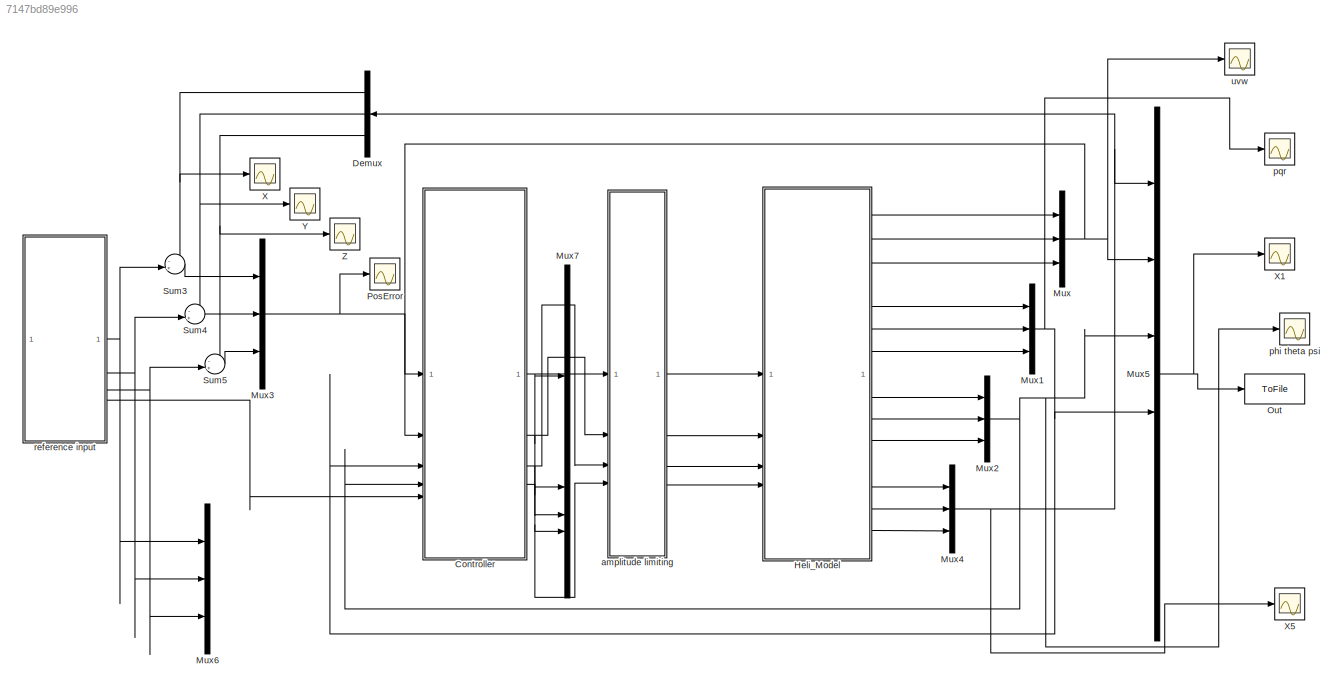
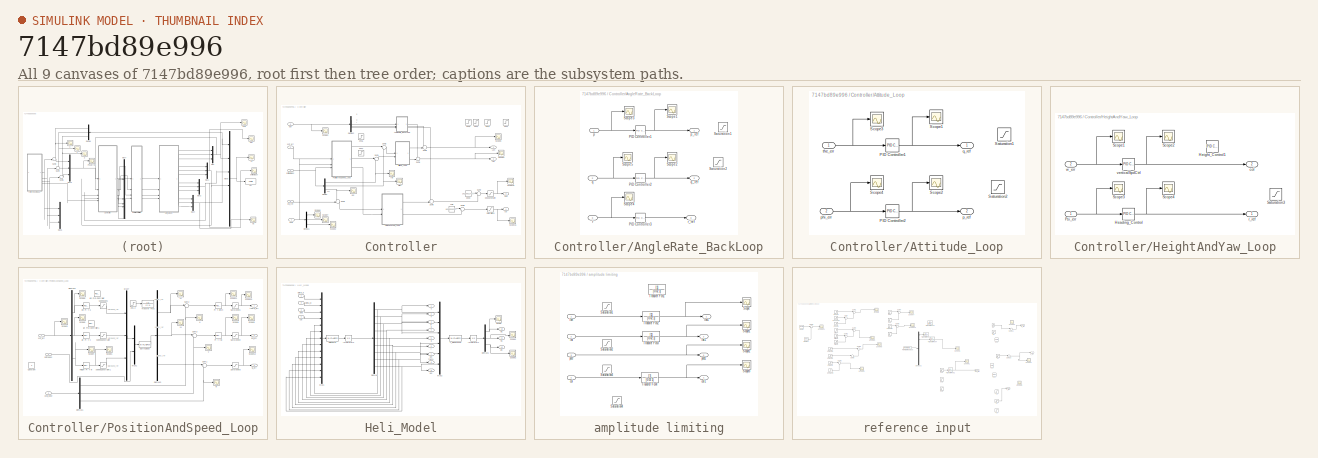
[diagram: thumbnail index - all 9 canvases of the model, root first then tree order]
MODEL mdl_7147bd89e996
KIND model
CONFIG AbsTol = auto
CONFIG EnableMultiTasking = on
CONFIG FixedStep = 0.01
CONFIG MaxStep = auto
CONFIG MinStep = auto
CONFIG RelTol = 1e-3
CONFIG SampleTimeConstraint = Unconstrained
CONFIG SolverName = ode3
CONFIG StartTime = 0.0
CONFIG StopTime = 80
BLOCK [SubSystem] Controller
BLOCK [Step] Controller/20s,1
  SampleTime = 0
  Time = 0
BLOCK [Step] Controller/20s,2
  After = 0
  SampleTime = 0
  Time = 0
BLOCK [Step] Controller/20s,3
  After = 25.296753501
  SampleTime = 0
  Time = 0
BLOCK [Step] Controller/20s,4
  After = 0.2
  SampleTime = 0
  Time = 0
BLOCK [Step] Controller/20s,5
  After = -0.1
  SampleTime = 0
BLOCK [Step] Controller/20s,6
  After = 0
  SampleTime = 0
  Time = 0
BLOCK [SubSystem] Controller/AngleRate_BackLoop
BLOCK [Reference] Controller/AngleRate_BackLoop/PID Controller1  REF=simulink_need_slupdate/PID Controller
  SourceBlock = simulink_need_slupdate/PID Controller
  SourceType = PID Controller
BLOCK [Reference] Controller/AngleRate_BackLoop/PID Controller2  REF=simulink_need_slupdate/PID Controller
  SourceBlock = simulink_need_slupdate/PID Controller
  SourceType = PID Controller
BLOCK [Reference] Controller/AngleRate_BackLoop/PID Controller3  REF=simulink_need_slupdate/PID Controller
  SourceBlock = simulink_need_slupdate/PID Controller
  SourceType = PID Controller
BLOCK [Saturate] Controller/AngleRate_BackLoop/Saturation1
  LowerLimit = -10
  UpperLimit = 10
BLOCK [Saturate] Controller/AngleRate_BackLoop/Saturation2
  LowerLimit = -10
  UpperLimit = 10
BLOCK [Scope] Controller/AngleRate_BackLoop/Scope1
  Floating = off
  NumInputPorts = 1
  ScopeSpecificationString = Simulink.scopes.TimeScopeBlockCfg('CurrentConfiguration', extmgr.ConfigurationSet(extmgr.Configuration('Core','General UI',true),extmgr.Configuration('Core','Source UI',true),extmgr.Configuration('Sources','WiredSimulink',true,'DataLoggingVariableName','ScopeData7','DataLoggingSaveFormat','StructureWithTime','DataLoggingDecimation','1','DataLoggingDecimateData',true),extmgr.Configuration('Visuals'...<+1654ch>
BLOCK [Scope] Controller/AngleRate_BackLoop/Scope2
  Floating = off
  NumInputPorts = 1
  ScopeSpecificationString = C++SS(StrPVP('Location','[5, 55, 1371, 733]'),StrPVP('Open','off'),StrPVP('ZoomMode','xonly'),MxPVP('AxesTitles',54,'struct(''axes1'',''%<SignalLabel>'')'),StrPVP('YMin','2.77556e-017'),StrPVP('YMax','0.9'),StrPVP('SaveName','ScopeData24'),StrPVP('DataFormat','StructureWithTime'),StrPVP('LimitDataPoints','off'),StrPVP('BlockParamSampleTime','0'),StrPVP('Decimation','1'),StrPVP('BlockParamSampleInp...<+11ch>
BLOCK [Scope] Controller/AngleRate_BackLoop/Scope3
  Floating = off
  NumInputPorts = 1
  ScopeSpecificationString = C++SS(StrPVP('Location','[-6, 55, 1360, 733]'),StrPVP('Open','off'),StrPVP('ZoomMode','xonly'),MxPVP('AxesTitles',54,'struct(''axes1'',''%<SignalLabel>'')'),StrPVP('YMin','2.77556e-017'),StrPVP('YMax','0.9'),StrPVP('SaveName','ScopeData42'),StrPVP('DataFormat','StructureWithTime'),StrPVP('LimitDataPoints','off'),StrPVP('BlockParamSampleTime','0'),StrPVP('Decimation','1'),StrPVP('BlockParamSampleIn...<+12ch>
BLOCK [Scope] Controller/AngleRate_BackLoop/Scope4
  Floating = off
  NumInputPorts = 1
  ScopeSpecificationString = C++SS(StrPVP('Location','[-6, 55, 1360, 733]'),StrPVP('Open','off'),StrPVP('ZoomMode','xonly'),MxPVP('AxesTitles',54,'struct(''axes1'',''%<SignalLabel>'')'),StrPVP('YMin','2.77556e-017'),StrPVP('YMax','0.9'),StrPVP('SaveName','ScopeData8'),StrPVP('DataFormat','StructureWithTime'),StrPVP('LimitDataPoints','off'),StrPVP('BlockParamSampleTime','0'),StrPVP('Decimation','1'),StrPVP('BlockParamSampleInp...<+11ch>
BLOCK [Scope] Controller/AngleRate_BackLoop/Scope5
  Floating = off
  NumInputPorts = 1
  ScopeSpecificationString = C++SS(StrPVP('Location','[-6, 55, 1360, 733]'),StrPVP('Open','off'),MxPVP('AxesTitles',54,'struct(''axes1'',''%<SignalLabel>'')'),StrPVP('YMin','2.77556e-017'),StrPVP('YMax','0.9'),StrPVP('SaveName','ScopeData11'),StrPVP('DataFormat','StructureWithTime'),StrPVP('LimitDataPoints','off'),StrPVP('BlockParamSampleTime','0'),StrPVP('Decimation','1'),StrPVP('BlockParamSampleInput','off'))
BLOCK [Inport] Controller/AngleRate_BackLoop/p
BLOCK [Outport] Controller/AngleRate_BackLoop/p_ref
BLOCK [Inport] Controller/AngleRate_BackLoop/q
  Port = 2
BLOCK [Outport] Controller/AngleRate_BackLoop/q_ref
  Port = 2
BLOCK [Inport] Controller/AngleRate_BackLoop/r
  Port = 3
BLOCK [Outport] Controller/AngleRate_BackLoop/r_ref
  Port = 3
BLOCK [SubSystem] Controller/Attitude_Loop
BLOCK [Reference] Controller/Attitude_Loop/PID Controller1  REF=simulink_need_slupdate/PID Controller
  SourceBlock = simulink_need_slupdate/PID Controller
  SourceType = PID Controller
BLOCK [Reference] Controller/Attitude_Loop/PID Controller2  REF=simulink_need_slupdate/PID Controller
  SourceBlock = simulink_need_slupdate/PID Controller
  SourceType = PID Controller
BLOCK [Saturate] Controller/Attitude_Loop/Saturation1
  LowerLimit = -3
  UpperLimit = 3
BLOCK [Saturate] Controller/Attitude_Loop/Saturation2
  LowerLimit = -3
  UpperLimit = 3
BLOCK [Scope] Controller/Attitude_Loop/Scope1
  Floating = off
  NumInputPorts = 1
  ScopeSpecificationString = Simulink.scopes.TimeScopeBlockCfg('CurrentConfiguration', extmgr.ConfigurationSet(extmgr.Configuration('Core','General UI',true),extmgr.Configuration('Core','Source UI',true),extmgr.Configuration('Sources','WiredSimulink',true,'DataLoggingVariableName','ScopeData7','DataLoggingSaveFormat','StructureWithTime','DataLoggingDecimation','1','DataLoggingDecimateData',true),extmgr.Configuration('Visuals'...<+1685ch>
BLOCK [Scope] Controller/Attitude_Loop/Scope2
  Floating = off
  NumInputPorts = 1
  ScopeSpecificationString = C++SS(StrPVP('Location','[5, 55, 1371, 733]'),StrPVP('Open','off'),StrPVP('ZoomMode','xonly'),MxPVP('AxesTitles',54,'struct(''axes1'',''%<SignalLabel>'')'),StrPVP('YMin','2.77556e-017'),StrPVP('YMax','0.9'),StrPVP('SaveName','ScopeData24'),StrPVP('DataFormat','StructureWithTime'),StrPVP('LimitDataPoints','off'),StrPVP('BlockParamSampleTime','0'),StrPVP('Decimation','1'),StrPVP('BlockParamSampleInp...<+11ch>
BLOCK [Scope] Controller/Attitude_Loop/Scope3
  Floating = off
  NumInputPorts = 1
  ScopeSpecificationString = Simulink.scopes.TimeScopeBlockCfg('CurrentConfiguration', extmgr.ConfigurationSet(extmgr.Configuration('Core','General UI',true),extmgr.Configuration('Core','Source UI',true),extmgr.Configuration('Sources','WiredSimulink',true,'DataLoggingVariableName','ScopeData42','DataLoggingSaveFormat','StructureWithTime','DataLoggingDecimation','1','DataLoggingDecimateData',true),extmgr.Configuration('Visuals...<+1671ch>
BLOCK [Scope] Controller/Attitude_Loop/Scope4
  Floating = off
  NumInputPorts = 1
  ScopeSpecificationString = C++SS(StrPVP('Location','[5, 55, 1371, 733]'),StrPVP('Open','off'),StrPVP('ZoomMode','xonly'),MxPVP('AxesTitles',54,'struct(''axes1'',''%<SignalLabel>'')'),StrPVP('YMin','2.77556e-017'),StrPVP('YMax','0.9'),StrPVP('SaveName','ScopeData59'),StrPVP('DataFormat','StructureWithTime'),StrPVP('LimitDataPoints','off'),StrPVP('BlockParamSampleTime','0'),StrPVP('Decimation','1'),StrPVP('BlockParamSampleInp...<+11ch>
BLOCK [Outport] Controller/Attitude_Loop/p_ref
  Port = 2
BLOCK [Inport] Controller/Attitude_Loop/phi_err
  Port = 2
BLOCK [Outport] Controller/Attitude_Loop/q_ref
BLOCK [Inport] Controller/Attitude_Loop/the_err
BLOCK [Demux] Controller/Demux
  Outputs = 3
BLOCK [Demux] Controller/Demux1
  Outputs = 3
BLOCK [Demux] Controller/Demux2
  Outputs = 3
BLOCK [SubSystem] Controller/HeightAndYaw_Loop
BLOCK [Reference] Controller/HeightAndYaw_Loop/Heading_Control  REF=simulink_need_slupdate/PID Controller
  SourceBlock = simulink_need_slupdate/PID Controller
  SourceType = PID Controller
BLOCK [Reference] Controller/HeightAndYaw_Loop/Height_Control1  REF=simulink_need_slupdate/PID Controller
  SourceBlock = simulink_need_slupdate/PID Controller
  SourceType = PID Controller
BLOCK [Inport] Controller/HeightAndYaw_Loop/Psi_err
BLOCK [Saturate] Controller/HeightAndYaw_Loop/Saturation3
  LowerLimit = 18.7232
  UpperLimit = 36
BLOCK [Scope] Controller/HeightAndYaw_Loop/Scope1
  Floating = off
  NumInputPorts = 1
  ScopeSpecificationString = C++SS(StrPVP('Location','[5, 55, 1371, 733]'),StrPVP('Open','off'),MxPVP('AxesTitles',54,'struct(''axes1'',''%<SignalLabel>'')'),StrPVP('TimeRange','12.03065134099617'),StrPVP('YMin','-0.9684385382059784'),StrPVP('YMax','0.5963455149501673'),StrPVP('SaveName','ScopeData26'),StrPVP('DataFormat','StructureWithTime'),StrPVP('LimitDataPoints','off'),StrPVP('BlockParamSampleTime','0'),StrPVP('Decimatio...<+46ch>
BLOCK [Scope] Controller/HeightAndYaw_Loop/Scope2
  Floating = off
  NumInputPorts = 1
  ScopeSpecificationString = C++SS(StrPVP('Location','[5, 55, 1371, 733]'),StrPVP('Open','off'),MxPVP('AxesTitles',54,'struct(''axes1'',''%<SignalLabel>'')'),StrPVP('YMin','2.77556e-017'),StrPVP('YMax','0.9'),StrPVP('SaveName','ScopeData36'),StrPVP('DataFormat','StructureWithTime'),StrPVP('LimitDataPoints','off'),StrPVP('BlockParamSampleTime','0'),StrPVP('Decimation','1'),StrPVP('BlockParamSampleInput','off'))
BLOCK [Scope] Controller/HeightAndYaw_Loop/Scope3
  Floating = off
  NumInputPorts = 1
  ScopeSpecificationString = Simulink.scopes.TimeScopeBlockCfg('CurrentConfiguration', extmgr.ConfigurationSet(extmgr.Configuration('Core','General UI',true),extmgr.Configuration('Core','Source UI',true),extmgr.Configuration('Sources','WiredSimulink',true,'DataLoggingVariableName','ScopeData32','DataLoggingSaveFormat','StructureWithTime','DataLoggingDecimation','1','DataLoggingDecimateData',true),extmgr.Configuration('Visuals...<+1671ch>
BLOCK [Scope] Controller/HeightAndYaw_Loop/Scope4
  Floating = off
  NumInputPorts = 1
  ScopeSpecificationString = Simulink.scopes.TimeScopeBlockCfg('CurrentConfiguration', extmgr.ConfigurationSet(extmgr.Configuration('Core','General UI',true),extmgr.Configuration('Core','Source UI',true),extmgr.Configuration('Sources','WiredSimulink',true,'DataLoggingVariableName','ScopeData37','DataLoggingSaveFormat','StructureWithTime','DataLoggingDecimation','1','DataLoggingDecimateData',true),extmgr.Configuration('Visuals...<+1674ch>
BLOCK [Outport] Controller/HeightAndYaw_Loop/col
  Port = 2
BLOCK [Outport] Controller/HeightAndYaw_Loop/r_ref
BLOCK [Reference] Controller/HeightAndYaw_Loop/verticalSpdCtrl  REF=simulink_need_slupdate/PID Controller
  SourceBlock = simulink_need_slupdate/PID Controller
  SourceType = PID Controller
BLOCK [Inport] Controller/HeightAndYaw_Loop/w_err
  Port = 2
BLOCK [Outport] Controller/Lat
  Port = 2
BLOCK [Outport] Controller/Lon
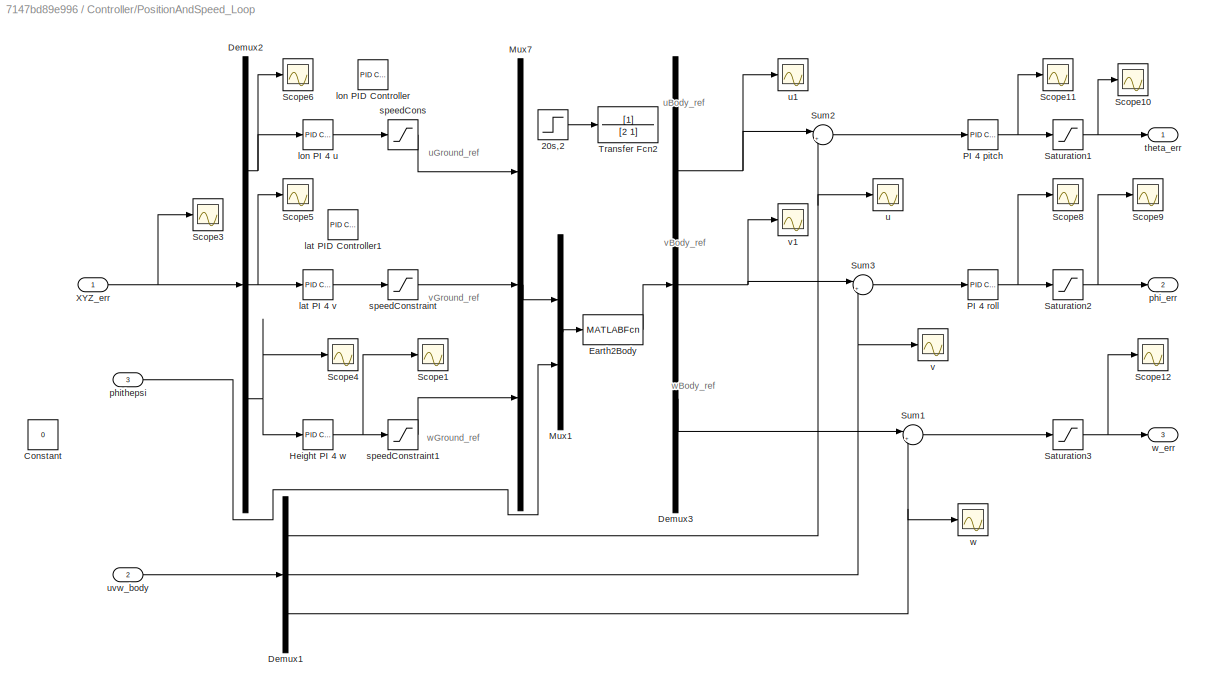
BLOCK [SubSystem] Controller/PositionAndSpeed_Loop
BLOCK [Step] Controller/PositionAndSpeed_Loop/20s,2
  After = 5
  SampleTime = 0
  Time = 10
BLOCK [Constant] Controller/PositionAndSpeed_Loop/Constant
  Value = 0
BLOCK [Demux] Controller/PositionAndSpeed_Loop/Demux1
  Outputs = 3
BLOCK [Demux] Controller/PositionAndSpeed_Loop/Demux2
  Outputs = 3
BLOCK [Demux] Controller/PositionAndSpeed_Loop/Demux3
  Outputs = 3
BLOCK [MATLABFcn] Controller/PositionAndSpeed_Loop/Earth2Body
  MATLABFcn = Earth2Body
  OutputDimensions = 3
BLOCK [Reference] Controller/PositionAndSpeed_Loop/Height PI 4 w  REF=simulink_need_slupdate/PID Controller
  SourceBlock = simulink_need_slupdate/PID Controller
  SourceType = PID Controller
BLOCK [Mux] Controller/PositionAndSpeed_Loop/Mux1
  DisplayOption = bar
  Inputs = 2
BLOCK [Mux] Controller/PositionAndSpeed_Loop/Mux7
  DisplayOption = bar
  Inputs = 3
BLOCK [Reference] Controller/PositionAndSpeed_Loop/PI 4 pitch  REF=simulink_need_slupdate/PID Controller
  SourceBlock = simulink_need_slupdate/PID Controller
  SourceType = PID Controller
BLOCK [Reference] Controller/PositionAndSpeed_Loop/PI 4 roll  REF=simulink_need_slupdate/PID Controller
  SourceBlock = simulink_need_slupdate/PID Controller
  SourceType = PID Controller
BLOCK [Saturate] Controller/PositionAndSpeed_Loop/Saturation1
  LowerLimit = -0.5236
  UpperLimit = 0.1745
BLOCK [Saturate] Controller/PositionAndSpeed_Loop/Saturation2
  LowerLimit = -0.6109
  UpperLimit = 0.6109
BLOCK [Saturate] Controller/PositionAndSpeed_Loop/Saturation3
  LowerLimit = -0.6109
  UpperLimit = 0.6109
BLOCK [Scope] Controller/PositionAndSpeed_Loop/Scope1
  Floating = off
  NumInputPorts = 1
  ScopeSpecificationString = C++SS(StrPVP('Location','[5, 84, 1371, 762]'),StrPVP('Open','off'),MxPVP('AxesTitles',54,'struct(''axes1'',''%<SignalLabel>'')'),StrPVP('SaveName','ScopeData5'),StrPVP('DataFormat','StructureWithTime'),StrPVP('LimitDataPoints','off'),StrPVP('BlockParamSampleTime','0'),StrPVP('Decimation','1'),StrPVP('BlockParamSampleInput','off'))
BLOCK [Scope] Controller/PositionAndSpeed_Loop/Scope10
  Floating = off
  NumInputPorts = 1
  ScopeSpecificationString = C++SS(StrPVP('Location','[-6, 84, 1360, 762]'),StrPVP('Open','off'),MxPVP('AxesTitles',54,'struct(''axes1'',''%<SignalLabel>'')'),StrPVP('SaveName','ScopeData40'),StrPVP('DataFormat','StructureWithTime'),StrPVP('LimitDataPoints','off'),StrPVP('BlockParamSampleTime','0'),StrPVP('Decimation','1'),StrPVP('BlockParamSampleInput','off'))
BLOCK [Scope] Controller/PositionAndSpeed_Loop/Scope11
  Floating = off
  NumInputPorts = 1
  ScopeSpecificationString = C++SS(StrPVP('Location','[224, 198, 797, 602]'),StrPVP('Open','off'),MxPVP('AxesTitles',54,'struct(''axes1'',''%<SignalLabel>'')'),StrPVP('SaveName','ScopeData43'),StrPVP('DataFormat','StructureWithTime'),StrPVP('LimitDataPoints','off'),StrPVP('BlockParamSampleTime','0'),StrPVP('Decimation','1'),StrPVP('BlockParamSampleInput','off'))
BLOCK [Scope] Controller/PositionAndSpeed_Loop/Scope12
  Floating = off
  NumInputPorts = 1
  ScopeSpecificationString = C++SS(StrPVP('Location','[5, 84, 1371, 762]'),StrPVP('Open','off'),MxPVP('AxesTitles',54,'struct(''axes1'',''%<SignalLabel>'')'),StrPVP('SaveName','ScopeData46'),StrPVP('DataFormat','StructureWithTime'),StrPVP('LimitDataPoints','off'),StrPVP('BlockParamSampleTime','0'),StrPVP('Decimation','1'),StrPVP('BlockParamSampleInput','off'))
BLOCK [Scope] Controller/PositionAndSpeed_Loop/Scope3
  Floating = off
  NumInputPorts = 1
  ScopeSpecificationString = C++SS(StrPVP('Location','[5, 84, 1371, 762]'),StrPVP('Open','off'),MxPVP('AxesTitles',54,'struct(''axes1'',''%<SignalLabel>'')'),StrPVP('SaveName','ScopeData38'),StrPVP('DataFormat','StructureWithTime'),StrPVP('LimitDataPoints','off'),StrPVP('BlockParamSampleTime','0'),StrPVP('Decimation','1'),StrPVP('BlockParamSampleInput','off'))
BLOCK [Scope] Controller/PositionAndSpeed_Loop/Scope4
  Floating = off
  NumInputPorts = 1
  ScopeSpecificationString = C++SS(StrPVP('Location','[-6, 84, 1360, 762]'),StrPVP('Open','off'),MxPVP('AxesTitles',54,'struct(''axes1'',''%<SignalLabel>'')'),StrPVP('SaveName','ScopeData39'),StrPVP('DataFormat','StructureWithTime'),StrPVP('LimitDataPoints','off'),StrPVP('BlockParamSampleTime','0'),StrPVP('Decimation','1'),StrPVP('BlockParamSampleInput','off'))
BLOCK [Scope] Controller/PositionAndSpeed_Loop/Scope5
  Floating = off
  NumInputPorts = 1
  ScopeSpecificationString = C++SS(StrPVP('Location','[-5, 84, 1361, 762]'),StrPVP('Open','off'),MxPVP('AxesTitles',54,'struct(''axes1'',''%<SignalLabel>'')'),StrPVP('SaveName','ScopeData15'),StrPVP('DataFormat','StructureWithTime'),StrPVP('LimitDataPoints','off'),StrPVP('BlockParamSampleTime','0'),StrPVP('Decimation','1'),StrPVP('BlockParamSampleInput','off'))
BLOCK [Scope] Controller/PositionAndSpeed_Loop/Scope6
  Floating = off
  NumInputPorts = 1
  ScopeSpecificationString = C++SS(StrPVP('Location','[-5, 84, 1361, 762]'),StrPVP('Open','off'),MxPVP('AxesTitles',54,'struct(''axes1'',''%<SignalLabel>'')'),StrPVP('SaveName','ScopeData25'),StrPVP('DataFormat','StructureWithTime'),StrPVP('LimitDataPoints','off'),StrPVP('BlockParamSampleTime','0'),StrPVP('Decimation','1'),StrPVP('BlockParamSampleInput','off'))
BLOCK [Scope] Controller/PositionAndSpeed_Loop/Scope8
  Floating = off
  NumInputPorts = 1
  ScopeSpecificationString = C++SS(StrPVP('Location','[5, 84, 1371, 762]'),StrPVP('Open','off'),MxPVP('AxesTitles',54,'struct(''axes1'',''%<SignalLabel>'')'),StrPVP('SaveName','ScopeData34'),StrPVP('DataFormat','StructureWithTime'),StrPVP('LimitDataPoints','off'),StrPVP('BlockParamSampleTime','0'),StrPVP('Decimation','1'),StrPVP('BlockParamSampleInput','off'))
BLOCK [Scope] Controller/PositionAndSpeed_Loop/Scope9
  Floating = off
  NumInputPorts = 1
  ScopeSpecificationString = C++SS(StrPVP('Location','[5, 84, 1371, 762]'),StrPVP('Open','off'),MxPVP('AxesTitles',54,'struct(''axes1'',''%<SignalLabel>'')'),StrPVP('SaveName','ScopeData1'),StrPVP('DataFormat','StructureWithTime'),StrPVP('LimitDataPoints','off'),StrPVP('BlockParamSampleTime','0'),StrPVP('Decimation','1'),StrPVP('BlockParamSampleInput','off'))
BLOCK [Sum] Controller/PositionAndSpeed_Loop/Sum1
  Inputs = |+-
BLOCK [Sum] Controller/PositionAndSpeed_Loop/Sum2
  Inputs = |+-
BLOCK [Sum] Controller/PositionAndSpeed_Loop/Sum3
  Inputs = |+-
BLOCK [TransferFcn] Controller/PositionAndSpeed_Loop/Transfer Fcn2
  Denominator = [2 1]
BLOCK [Inport] Controller/PositionAndSpeed_Loop/XYZ_err
BLOCK [Reference] Controller/PositionAndSpeed_Loop/lat PI 4 v  REF=simulink_need_slupdate/PID Controller
  SourceBlock = simulink_need_slupdate/PID Controller
  SourceType = PID Controller
BLOCK [Reference] Controller/PositionAndSpeed_Loop/lat PID Controller1  REF=simulink_need_slupdate/PID Controller
  SourceBlock = simulink_need_slupdate/PID Controller
  SourceType = PID Controller
BLOCK [Reference] Controller/PositionAndSpeed_Loop/lon PI 4 u  REF=simulink_need_slupdate/PID Controller
  SourceBlock = simulink_need_slupdate/PID Controller
  SourceType = PID Controller
BLOCK [Reference] Controller/PositionAndSpeed_Loop/lon PID Controller  REF=simulink_need_slupdate/PID Controller
  SourceBlock = simulink_need_slupdate/PID Controller
  SourceType = PID Controller
BLOCK [Outport] Controller/PositionAndSpeed_Loop/phi_err
  Port = 2
BLOCK [Inport] Controller/PositionAndSpeed_Loop/phithepsi
  Port = 3
BLOCK [Saturate] Controller/PositionAndSpeed_Loop/speedCons
  LowerLimit = -10
  UpperLimit = 10
BLOCK [Saturate] Controller/PositionAndSpeed_Loop/speedConstraint
  LowerLimit = -2
  UpperLimit = 2
BLOCK [Saturate] Controller/PositionAndSpeed_Loop/speedConstraint1
  LowerLimit = -3
  UpperLimit = 3
BLOCK [Outport] Controller/PositionAndSpeed_Loop/theta_err
BLOCK [Scope] Controller/PositionAndSpeed_Loop/u
  Floating = off
  NumInputPorts = 1
  ScopeSpecificationString = C++SS(StrPVP('Location','[5, 84, 1371, 762]'),StrPVP('Open','off'),MxPVP('AxesTitles',54,'struct(''axes1'',''%<SignalLabel>'')'),StrPVP('SaveName','ScopeData29'),StrPVP('DataFormat','StructureWithTime'),StrPVP('LimitDataPoints','off'),StrPVP('BlockParamSampleTime','0'),StrPVP('Decimation','1'),StrPVP('BlockParamSampleInput','off'))
BLOCK [Scope] Controller/PositionAndSpeed_Loop/u1
  Floating = off
  NumInputPorts = 1
  ScopeSpecificationString = C++SS(StrPVP('Location','[-6, 84, 1360, 762]'),StrPVP('Open','off'),MxPVP('AxesTitles',54,'struct(''axes1'',''%<SignalLabel>'')'),StrPVP('SaveName','ScopeData13'),StrPVP('DataFormat','StructureWithTime'),StrPVP('LimitDataPoints','off'),StrPVP('BlockParamSampleTime','0'),StrPVP('Decimation','1'),StrPVP('BlockParamSampleInput','off'))
BLOCK [Inport] Controller/PositionAndSpeed_Loop/uvw_body
  Port = 2
BLOCK [Scope] Controller/PositionAndSpeed_Loop/v
  Floating = off
  NumInputPorts = 1
  ScopeSpecificationString = C++SS(StrPVP('Location','[-6, 84, 1360, 762]'),StrPVP('Open','off'),MxPVP('AxesTitles',54,'struct(''axes1'',''%<SignalLabel>'')'),StrPVP('SaveName','ScopeData47'),StrPVP('DataFormat','StructureWithTime'),StrPVP('LimitDataPoints','off'),StrPVP('BlockParamSampleTime','0'),StrPVP('Decimation','1'),StrPVP('BlockParamSampleInput','off'))
BLOCK [Scope] Controller/PositionAndSpeed_Loop/v1
  Floating = off
  NumInputPorts = 1
  ScopeSpecificationString = C++SS(StrPVP('Location','[5, 84, 1371, 762]'),StrPVP('Open','off'),MxPVP('AxesTitles',54,'struct(''axes1'',''%<SignalLabel>'')'),StrPVP('SaveName','ScopeData52'),StrPVP('DataFormat','StructureWithTime'),StrPVP('LimitDataPoints','off'),StrPVP('BlockParamSampleTime','0'),StrPVP('Decimation','1'),StrPVP('BlockParamSampleInput','off'))
BLOCK [Scope] Controller/PositionAndSpeed_Loop/w
  Floating = off
  NumInputPorts = 1
  ScopeSpecificationString = C++SS(StrPVP('Location','[5, 84, 1371, 762]'),StrPVP('Open','off'),MxPVP('AxesTitles',54,'struct(''axes1'',''%<SignalLabel>'')'),StrPVP('SaveName','ScopeData49'),StrPVP('DataFormat','StructureWithTime'),StrPVP('LimitDataPoints','off'),StrPVP('BlockParamSampleTime','0'),StrPVP('Decimation','1'),StrPVP('BlockParamSampleInput','off'))
BLOCK [Outport] Controller/PositionAndSpeed_Loop/w_err
  Port = 3
BLOCK [Saturate] Controller/Saturation1
  LowerLimit = 0.5
  UpperLimit = 12
BLOCK [Scope] Controller/Scope1
  Floating = off
  NumInputPorts = 1
  ScopeSpecificationString = C++SS(StrPVP('Location','[225, 130, 1256, 668]'),StrPVP('Open','off'),MxPVP('AxesTitles',54,'struct(''axes1'',''%<SignalLabel>'')'),StrPVP('TimeRange','50'),StrPVP('YMin','0'),StrPVP('YMax','8000000000'),StrPVP('SaveName','ScopeData12'),StrPVP('DataFormat','StructureWithTime'),StrPVP('LimitDataPoints','off'),StrPVP('BlockParamSampleTime','0'),StrPVP('Decimation','1'),StrPVP('BlockParamSampleInput'...<+8ch>
BLOCK [Scope] Controller/Scope10
  Floating = off
  NumInputPorts = 1
  ScopeSpecificationString = Simulink.scopes.TimeScopeBlockCfg('CurrentConfiguration', extmgr.ConfigurationSet(extmgr.Configuration('Core','General UI',true),extmgr.Configuration('Core','Source UI',true),extmgr.Configuration('Sources','WiredSimulink',true,'DataLoggingVariableName','ScopeData31','DataLoggingSaveFormat','StructureWithTime','DataLoggingDecimation','1','DataLoggingDecimateData',true),extmgr.Configuration('Visuals...<+2033ch>
BLOCK [Scope] Controller/Scope15
  Floating = off
  NumInputPorts = 1
  ScopeSpecificationString = Simulink.scopes.TimeScopeBlockCfg('CurrentConfiguration', extmgr.ConfigurationSet(extmgr.Configuration('Core','General UI',true),extmgr.Configuration('Core','Source UI',true),extmgr.Configuration('Sources','WiredSimulink',true,'DataLoggingVariableName','ScopeData60','DataLoggingSaveFormat','StructureWithTime','DataLoggingDecimation','1','DataLoggingDecimateData',true),extmgr.Configuration('Visuals...<+1997ch>
BLOCK [Scope] Controller/Scope2
  Floating = off
  NumInputPorts = 1
  ScopeSpecificationString = C++SS(StrPVP('Location','[225, 130, 1256, 668]'),StrPVP('Open','off'),MxPVP('AxesTitles',54,'struct(''axes1'',''%<SignalLabel>'')'),StrPVP('TimeRange','50'),StrPVP('YMin','0'),StrPVP('YMax','8000000000'),StrPVP('SaveName','ScopeData9'),StrPVP('DataFormat','StructureWithTime'),StrPVP('LimitDataPoints','off'),StrPVP('BlockParamSampleTime','0'),StrPVP('Decimation','1'),StrPVP('BlockParamSampleInput',...<+7ch>
BLOCK [Scope] Controller/Scope3
  Floating = off
  NumInputPorts = 1
  ScopeSpecificationString = Simulink.scopes.TimeScopeBlockCfg('CurrentConfiguration', extmgr.ConfigurationSet(extmgr.Configuration('Core','General UI',true),extmgr.Configuration('Core','Source UI',true),extmgr.Configuration('Sources','WiredSimulink',true,'DataLoggingVariableName','ScopeData27','DataLoggingSaveFormat','StructureWithTime','DataLoggingDecimation','1','DataLoggingDecimateData',true),extmgr.Configuration('Visuals...<+1974ch>
BLOCK [Scope] Controller/Scope6
  Floating = off
  NumInputPorts = 1
  ScopeSpecificationString = C++SS(StrPVP('Location','[5, 55, 1371, 733]'),StrPVP('Open','off'),MxPVP('AxesTitles',54,'struct(''axes1'',''%<SignalLabel>'')'),StrPVP('TimeRange','50'),StrPVP('YMin','-3.5e-014'),StrPVP('YMax','0'),StrPVP('SaveName','ScopeData22'),StrPVP('DataFormat','StructureWithTime'),StrPVP('LimitDataPoints','off'),StrPVP('BlockParamSampleTime','0'),StrPVP('Decimation','1'),StrPVP('BlockParamSampleInput','of...<+4ch>
BLOCK [Scope] Controller/Scope7
  Floating = off
  NumInputPorts = 1
  ScopeSpecificationString = C++SS(StrPVP('Location','[75, 55, 1355, 768]'),StrPVP('Open','off'),MxPVP('AxesTitles',54,'struct(''axes1'',''%<SignalLabel>'')'),StrPVP('TimeRange','10'),StrPVP('YMin','-0.2'),StrPVP('YMax','1.2'),StrPVP('SaveName','ScopeData23'),StrPVP('DataFormat','StructureWithTime'),StrPVP('LimitDataPoints','off'),StrPVP('BlockParamSampleTime','0'),StrPVP('Decimation','1'),StrPVP('BlockParamSampleInput','off'...<+2ch>
BLOCK [Scope] Controller/Scope8
  Floating = off
  NumInputPorts = 1
  ScopeSpecificationString = Simulink.scopes.TimeScopeBlockCfg('CurrentConfiguration', extmgr.ConfigurationSet(extmgr.Configuration('Core','General UI',true),extmgr.Configuration('Core','Source UI',true),extmgr.Configuration('Sources','WiredSimulink',true,'DataLoggingVariableName','ScopeData28','DataLoggingSaveFormat','StructureWithTime','DataLoggingDecimation','1','DataLoggingDecimateData',true),extmgr.Configuration('Visuals...<+2003ch>
BLOCK [Sum] Controller/Sum1
  Inputs = |+-
BLOCK [Sum] Controller/Sum2
  Inputs = |+-
BLOCK [Sum] Controller/Sum3
  Inputs = -+|
BLOCK [Sum] Controller/Sum4
  Inputs = -+|
BLOCK [Sum] Controller/Sum5
  Inputs = -+|
BLOCK [Sum] Controller/Sum6
  Inputs = -+|
BLOCK [Sum] Controller/Sum7
  Inputs = |+-
BLOCK [Sum] Controller/Sum8
  Inputs = |+-
BLOCK [Inport] Controller/XYZ_err
  Port = 2
BLOCK [Outport] Controller/col
  Port = 4
BLOCK [Constant] Controller/col0
  Value = 8.0000590142582484266674630436353
BLOCK [Outport] Controller/ped
  Port = 3
BLOCK [Constant] Controller/ped0
  Value = 25.296821418115495093514071000718
BLOCK [Saturate] Controller/pedConstraint
  LowerLimit = 18.7232
  UpperLimit = 35
BLOCK [Inport] Controller/phi,theta,psi
  Port = 4
BLOCK [Scope] Controller/pitch
  Floating = off
  NumInputPorts = 1
  ScopeSpecificationString = Simulink.scopes.TimeScopeBlockCfg('CurrentConfiguration', extmgr.ConfigurationSet(extmgr.Configuration('Core','General UI',true),extmgr.Configuration('Core','Source UI',true),extmgr.Configuration('Sources','WiredSimulink',true,'DataLoggingVariableName','ScopeData51','DataLoggingSaveFormat','StructureWithTime','DataLoggingDecimation','1','DataLoggingDecimateData',true),extmgr.Configuration('Visuals...<+1754ch>
BLOCK [Inport] Controller/pqr
  Port = 3
BLOCK [Scope] Controller/psi
  Floating = off
  NumInputPorts = 1
  ScopeSpecificationString = Simulink.scopes.TimeScopeBlockCfg('CurrentConfiguration', extmgr.ConfigurationSet(extmgr.Configuration('Core','General UI',true),extmgr.Configuration('Core','Source UI',true),extmgr.Configuration('Sources','WiredSimulink',true,'DataLoggingVariableName','ScopeData58','DataLoggingSaveFormat','StructureWithTime','DataLoggingDecimation','1','DataLoggingDecimateData',true),extmgr.Configuration('Visuals...<+1762ch>
BLOCK [Inport] Controller/psi_ref
  Port = 5
BLOCK [Scope] Controller/roll
  Floating = off
  NumInputPorts = 1
  ScopeSpecificationString = Simulink.scopes.TimeScopeBlockCfg('CurrentConfiguration', extmgr.ConfigurationSet(extmgr.Configuration('Core','General UI',true),extmgr.Configuration('Core','Source UI',true),extmgr.Configuration('Sources','WiredSimulink',true,'DataLoggingVariableName','ScopeData41','DataLoggingSaveFormat','StructureWithTime','DataLoggingDecimation','1','DataLoggingDecimateData',true),extmgr.Configuration('Visuals...<+1762ch>
BLOCK [Inport] Controller/uvw
BLOCK [Demux] Demux
  Outputs = 3
BLOCK [SubSystem] Heli_Model
BLOCK [Inport] Heli_Model/Delta_a
BLOCK [Inport] Heli_Model/Delta_b
  Port = 2
BLOCK [Demux] Heli_Model/Demux
  Outputs = 9
BLOCK [Demux] Heli_Model/Demux1
  Outputs = 3
BLOCK [MATLABFcn] Heli_Model/Helicopter
  MATLABFcn = F500Model
BLOCK [Integrator] Heli_Model/Integrator1
  InitialCondition = [0 0 0]
BLOCK [Integrator] Heli_Model/Integrator2
  InitialCondition = [0 0 0 0 0 0 0 0 0]
BLOCK [MATLABFcn] Heli_Model/L_EB2Ground
  MATLABFcn = L_EB2Ground
BLOCK [Mux] Heli_Model/Mux1
  DisplayOption = bar
  Inputs = 13
BLOCK [Mux] Heli_Model/Mux2
  DisplayOption = bar
  Inputs = 6
BLOCK [Scope] Heli_Model/Scope
  Floating = off
  NumInputPorts = 1
  ScopeSpecificationString = Simulink.scopes.TimeScopeBlockCfg('CurrentConfiguration', extmgr.ConfigurationSet(extmgr.Configuration('Core','General UI',true),extmgr.Configuration('Core','Source UI',true),extmgr.Configuration('Sources','WiredSimulink',true,'DataLoggingVariableName','ScopeData2','DataLoggingSaveFormat','StructureWithTime','DataLoggingLimitDataPoints',true,'DataLoggingDecimation','1','DataLoggingDecimateData',tr...<+1985ch>
BLOCK [Scope] Heli_Model/Scope1
  Floating = off
  NumInputPorts = 2
  ScopeSpecificationString = Simulink.scopes.TimeScopeBlockCfg('CurrentConfiguration', extmgr.ConfigurationSet(extmgr.Configuration('Core','General UI',true),extmgr.Configuration('Core','Source UI',true),extmgr.Configuration('Sources','WiredSimulink',true,'DataLoggingVariableName','ScopeData3','DataLoggingSaveFormat','StructureWithTime','DataLoggingDecimation','1','DataLoggingDecimateData',true),extmgr.Configuration('Visuals'...<+1666ch>
BLOCK [Scope] Heli_Model/Scope2
  Floating = off
  NumInputPorts = 1
  ScopeSpecificationString = Simulink.scopes.TimeScopeBlockCfg('CurrentConfiguration', extmgr.ConfigurationSet(extmgr.Configuration('Core','General UI',true),extmgr.Configuration('Core','Source UI',true),extmgr.Configuration('Sources','WiredSimulink',true,'DataLoggingVariableName','ScopeData4','DataLoggingSaveFormat','StructureWithTime','DataLoggingDecimation','1','DataLoggingDecimateData',true),extmgr.Configuration('Visuals'...<+1659ch>
BLOCK [Outport] Heli_Model/XE
  Port = 10
BLOCK [Outport] Heli_Model/YE
  Port = 11
BLOCK [Outport] Heli_Model/ZE
  Port = 12
BLOCK [Inport] Heli_Model/col
  Port = 4
BLOCK [Outport] Heli_Model/p
  Port = 4
BLOCK [Inport] Heli_Model/ped
  Port = 3
BLOCK [Outport] Heli_Model/phi
  Port = 7
BLOCK [Outport] Heli_Model/psi
  Port = 9
BLOCK [Outport] Heli_Model/q
  Port = 5
BLOCK [Outport] Heli_Model/r
  Port = 6
BLOCK [Outport] Heli_Model/theta
  Port = 8
BLOCK [Outport] Heli_Model/u
BLOCK [Outport] Heli_Model/v
  Port = 2
BLOCK [Outport] Heli_Model/w
  Port = 3
BLOCK [Mux] Mux
  DisplayOption = bar
  Inputs = 3
BLOCK [Mux] Mux1
  DisplayOption = bar
  Inputs = 3
BLOCK [Mux] Mux2
  DisplayOption = bar
  Inputs = 3
BLOCK [Mux] Mux3
  DisplayOption = bar
  Inputs = 3
BLOCK [Mux] Mux4
  DisplayOption = bar
  Inputs = 3
BLOCK [Mux] Mux5
  DisplayOption = bar
  Inputs = 6
BLOCK [Mux] Mux6
  DisplayOption = bar
  Inputs = 3
BLOCK [Mux] Mux7
  DisplayOption = bar
BLOCK [ToFile] Out
  Filename = allstates2level.mat
  MatrixName = AllStates
BLOCK [Scope] PosError
  Floating = off
  NumInputPorts = 1
  ScopeSpecificationString = Simulink.scopes.TimeScopeBlockCfg('CurrentConfiguration', extmgr.ConfigurationSet(extmgr.Configuration('Core','General UI',true),extmgr.Configuration('Core','Source UI',true),extmgr.Configuration('Sources','WiredSimulink',true,'DataLoggingVariableName','ScopeData17','DataLoggingSaveFormat','StructureWithTime','DataLoggingDecimation','1','DataLoggingDecimateData',true),extmgr.Configuration('Visuals...<+1644ch>
BLOCK [Sum] Sum3
  Inputs = -+|
BLOCK [Sum] Sum4
  Inputs = -+|
BLOCK [Sum] Sum5
  Inputs = -+|
BLOCK [Scope] X
  Floating = off
  NumInputPorts = 1
  ScopeSpecificationString = Simulink.scopes.TimeScopeBlockCfg('CurrentConfiguration', extmgr.ConfigurationSet(extmgr.Configuration('Core','General UI',true),extmgr.Configuration('Core','Source UI',true),extmgr.Configuration('Sources','WiredSimulink',true,'DataLoggingVariableName','ScopeData30','DataLoggingSaveFormat','StructureWithTime','DataLoggingDecimation','1','DataLoggingDecimateData',true),extmgr.Configuration('Visuals...<+1755ch>
BLOCK [Scope] X1
  Floating = off
  NumInputPorts = 1
  ScopeSpecificationString = Simulink.scopes.TimeScopeBlockCfg('CurrentConfiguration', extmgr.ConfigurationSet(extmgr.Configuration('Core','General UI',true),extmgr.Configuration('Core','Source UI',true),extmgr.Configuration('Sources','WiredSimulink',true,'DataLoggingVariableName','ScopeData1','DataLoggingSaveFormat','StructureWithTime','DataLoggingDecimation','1','DataLoggingDecimateData',true),extmgr.Configuration('Visuals'...<+2310ch>
BLOCK [Scope] X5
  Floating = off
  NumInputPorts = 1
  ScopeSpecificationString = Simulink.scopes.TimeScopeBlockCfg('CurrentConfiguration', extmgr.ConfigurationSet(extmgr.Configuration('Core','General UI',true),extmgr.Configuration('Core','Source UI',true),extmgr.Configuration('Sources','WiredSimulink',true,'DataLoggingVariableName','ScopeData5','DataLoggingSaveFormat','StructureWithTime','DataLoggingDecimation','1','DataLoggingDecimateData',true),extmgr.Configuration('Visuals'...<+2126ch>
BLOCK [Scope] Y
  Floating = off
  NumInputPorts = 1
  ScopeSpecificationString = Simulink.scopes.TimeScopeBlockCfg('CurrentConfiguration', extmgr.ConfigurationSet(extmgr.Configuration('Core','General UI',true),extmgr.Configuration('Core','Source UI',true),extmgr.Configuration('Sources','WiredSimulink',true,'DataLoggingVariableName','ScopeData6','DataLoggingSaveFormat','StructureWithTime','DataLoggingDecimation','1','DataLoggingDecimateData',true),extmgr.Configuration('Visuals'...<+1653ch>
BLOCK [Scope] Z
  Floating = off
  NumInputPorts = 1
  ScopeSpecificationString = Simulink.scopes.TimeScopeBlockCfg('CurrentConfiguration', extmgr.ConfigurationSet(extmgr.Configuration('Core','General UI',true),extmgr.Configuration('Core','Source UI',true),extmgr.Configuration('Sources','WiredSimulink',true,'DataLoggingVariableName','ScopeData10','DataLoggingSaveFormat','StructureWithTime','DataLoggingDecimation','1','DataLoggingDecimateData',true),extmgr.Configuration('Visuals...<+1722ch>
BLOCK [SubSystem] amplitude limiting
BLOCK [Saturate] amplitude limiting/Saturation1
  LowerLimit = -0.6
  UpperLimit = 0.6
BLOCK [Saturate] amplitude limiting/Saturation2
  LowerLimit = -0.6
  UpperLimit = 0.6
BLOCK [Saturate] amplitude limiting/Saturation3
  LowerLimit = -0.6
  UpperLimit = 0.6
BLOCK [Saturate] amplitude limiting/Saturation4
  LowerLimit = -10
  UpperLimit = 10
BLOCK [Scope] amplitude limiting/Scope
  Floating = off
  NumInputPorts = 1
  ScopeSpecificationString = Simulink.scopes.TimeScopeBlockCfg('CurrentConfiguration', extmgr.ConfigurationSet(extmgr.Configuration('Core','General UI',true),extmgr.Configuration('Core','Source UI',true),extmgr.Configuration('Sources','WiredSimulink',true,'DataLoggingVariableName','ScopeData18','DataLoggingSaveFormat','StructureWithTime','DataLoggingLimitDataPoints',true,'DataLoggingDecimation','1','DataLoggingDecimateData',t...<+2017ch>
BLOCK [Scope] amplitude limiting/Scope1
  Floating = off
  NumInputPorts = 1
  ScopeSpecificationString = Simulink.scopes.TimeScopeBlockCfg('CurrentConfiguration', extmgr.ConfigurationSet(extmgr.Configuration('Core','General UI',true),extmgr.Configuration('Core','Source UI',true),extmgr.Configuration('Sources','WiredSimulink',true,'DataLoggingVariableName','ScopeData19','DataLoggingSaveFormat','StructureWithTime','DataLoggingLimitDataPoints',true,'DataLoggingDecimation','1','DataLoggingDecimateData',t...<+2019ch>
BLOCK [Scope] amplitude limiting/Scope2
  Floating = off
  NumInputPorts = 1
  ScopeSpecificationString = Simulink.scopes.TimeScopeBlockCfg('CurrentConfiguration', extmgr.ConfigurationSet(extmgr.Configuration('Core','General UI',true),extmgr.Configuration('Core','Source UI',true),extmgr.Configuration('Sources','WiredSimulink',true,'DataLoggingVariableName','ScopeData20','DataLoggingSaveFormat','StructureWithTime','DataLoggingLimitDataPoints',true,'DataLoggingDecimation','1','DataLoggingDecimateData',t...<+2125ch>
BLOCK [Scope] amplitude limiting/Scope3
  Floating = off
  NumInputPorts = 1
  ScopeSpecificationString = Simulink.scopes.TimeScopeBlockCfg('CurrentConfiguration', extmgr.ConfigurationSet(extmgr.Configuration('Core','General UI',true),extmgr.Configuration('Core','Source UI',true),extmgr.Configuration('Sources','WiredSimulink',true,'DataLoggingVariableName','ScopeData21','DataLoggingSaveFormat','StructureWithTime','DataLoggingDecimation','1','DataLoggingDecimateData',true),extmgr.Configuration('Visuals...<+1976ch>
BLOCK [TransferFcn] amplitude limiting/Transfer Fcn1
  Denominator = [0.02 1]
BLOCK [TransferFcn] amplitude limiting/Transfer Fcn2
  Denominator = [0.02 1]
BLOCK [TransferFcn] amplitude limiting/Transfer Fcn3
  Denominator = [0.02 1]
BLOCK [TransferFcn] amplitude limiting/Transfer Fcn4
  Denominator = [0.02 1]
BLOCK [Inport] amplitude limiting/col
  Port = 4
BLOCK [Outport] amplitude limiting/col1
  Port = 4
BLOCK [Inport] amplitude limiting/lat
  Port = 2
BLOCK [Outport] amplitude limiting/lat1
  Port = 2
BLOCK [Inport] amplitude limiting/lon
BLOCK [Outport] amplitude limiting/lon1
BLOCK [Inport] amplitude limiting/ped
  Port = 3
BLOCK [Outport] amplitude limiting/ped1
  Port = 3
BLOCK [Scope] phi theta psi
  Floating = off
  NumInputPorts = 1
  ScopeSpecificationString = Simulink.scopes.TimeScopeBlockCfg('CurrentConfiguration', extmgr.ConfigurationSet(extmgr.Configuration('Core','General UI',true),extmgr.Configuration('Core','Source UI',true),extmgr.Configuration('Sources','WiredSimulink',true,'DataLoggingVariableName','ScopeData4','DataLoggingSaveFormat','StructureWithTime','DataLoggingDecimation','1','DataLoggingDecimateData',true),extmgr.Configuration('Visuals'...<+2134ch>
BLOCK [Scope] pqr
  Floating = off
  NumInputPorts = 1
  ScopeSpecificationString = Simulink.scopes.TimeScopeBlockCfg('CurrentConfiguration', extmgr.ConfigurationSet(extmgr.Configuration('Core','General UI',true),extmgr.Configuration('Core','Source UI',true),extmgr.Configuration('Sources','WiredSimulink',true,'DataLoggingVariableName','ScopeData3','DataLoggingSaveFormat','StructureWithTime','DataLoggingDecimation','1','DataLoggingDecimateData',true),extmgr.Configuration('Visuals'...<+1824ch>
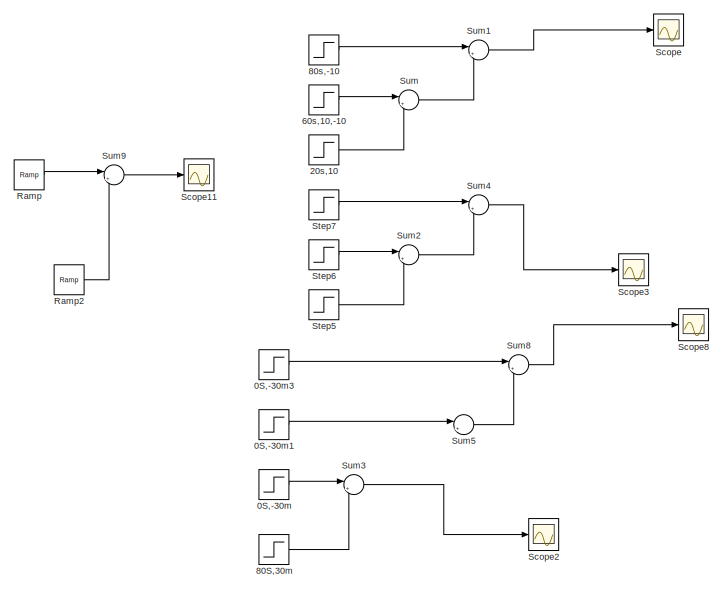
[diagram: reference input - part 1/2, top left region]
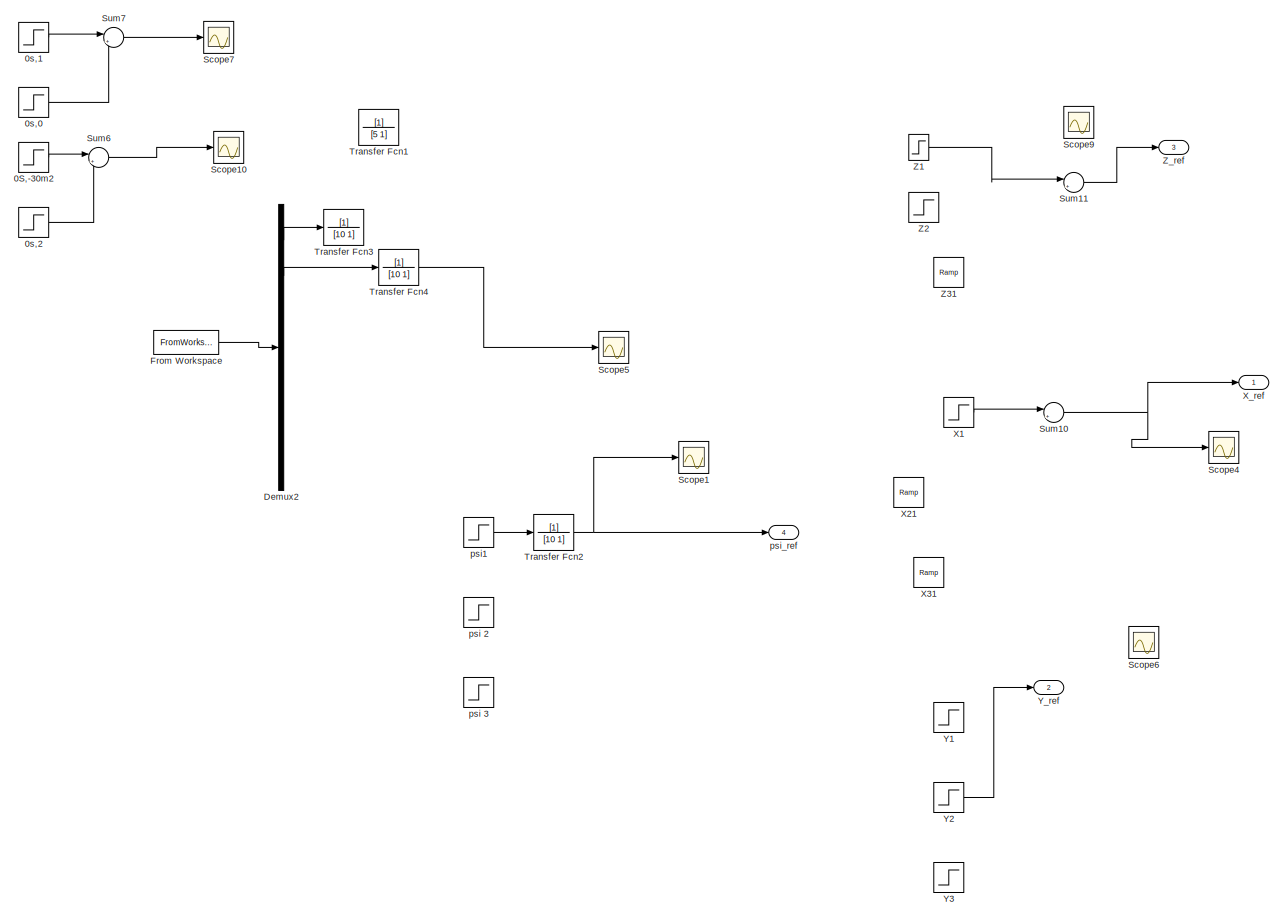
[diagram: reference input - part 2/2, right side, full height]
BLOCK [SubSystem] reference input
BLOCK [Step] reference input/0S,-30m
  After = -3
  SampleTime = 0
  Time = 70
BLOCK [Step] reference input/0S,-30m1
  After = 5
  Before = 10
  SampleTime = 0
  Time = 60
BLOCK [Step] reference input/0S,-30m2
  After = 10
  SampleTime = 0
  Time = 10
BLOCK [Step] reference input/0S,-30m3
  After = 0
  Before = 5
  SampleTime = 0
  Time = 70
BLOCK [Step] reference input/0s,0
  After = 0
  SampleTime = 0
  Time = 10
BLOCK [Step] reference input/0s,1
  After = 5
  SampleTime = 0
  Time = 0
BLOCK [Step] reference input/0s,2
  After = 5
  SampleTime = 0
  Time = 0
BLOCK [Step] reference input/20s,10
  After = 5
  SampleTime = 0
  Time = 20
BLOCK [Step] reference input/60s,10,-10
  After = -5
  Before = 5
  SampleTime = 0
  Time = 30
BLOCK [Step] reference input/80S,30m
  After = 3
  SampleTime = 0
  Time = 10
BLOCK [Step] reference input/80s,-10
  After = 0
  Before = -5
  SampleTime = 0
  Time = 40
BLOCK [Demux] reference input/Demux2
  Outputs = 7
BLOCK [FromWorkspace] reference input/From Workspace
  VariableName = Waypoint
BLOCK [Reference] reference input/Ramp  REF=simulink/Sources/Ramp
  SourceBlock = simulink/Sources/Ramp
  SourceType = Ramp
BLOCK [Reference] reference input/Ramp2  REF=simulink/Sources/Ramp
  SourceBlock = simulink/Sources/Ramp
  SourceType = Ramp
BLOCK [Scope] reference input/Scope
  Floating = off
  NumInputPorts = 1
  ScopeSpecificationString = Simulink.scopes.TimeScopeBlockCfg('CurrentConfiguration', extmgr.ConfigurationSet(extmgr.Configuration('Core','General UI',true),extmgr.Configuration('Core','Source UI',true),extmgr.Configuration('Sources','WiredSimulink',true,'DataLoggingSaveFormat','StructureWithTime','DataLoggingDecimation','1','DataLoggingDecimateData',true),extmgr.Configuration('Visuals','Time Domain',true,'SerializedDisplays...<+1612ch>
BLOCK [Scope] reference input/Scope1
  Floating = off
  NumInputPorts = 1
  ScopeSpecificationString = Simulink.scopes.TimeScopeBlockCfg('CurrentConfiguration', extmgr.ConfigurationSet(extmgr.Configuration('Core','General UI',true),extmgr.Configuration('Core','Source UI',true),extmgr.Configuration('Sources','WiredSimulink',true,'DataLoggingVariableName','ScopeData14','DataLoggingSaveFormat','StructureWithTime','DataLoggingDecimation','1','DataLoggingDecimateData',true),extmgr.Configuration('Visuals...<+1671ch>
BLOCK [Scope] reference input/Scope10
  Floating = off
  NumInputPorts = 1
  ScopeSpecificationString = Simulink.scopes.TimeScopeBlockCfg('CurrentConfiguration', extmgr.ConfigurationSet(extmgr.Configuration('Core','General UI',true),extmgr.Configuration('Core','Source UI',true),extmgr.Configuration('Sources','WiredSimulink',true,'DataLoggingSaveFormat','StructureWithTime','DataLoggingDecimation','1','DataLoggingDecimateData',true,'DataLoggingVariableName','ScopeData3'),extmgr.Configuration('Visuals'...<+1647ch>
BLOCK [Scope] reference input/Scope11
  Floating = off
  NumInputPorts = 1
  ScopeSpecificationString = Simulink.scopes.TimeScopeBlockCfg('CurrentConfiguration', extmgr.ConfigurationSet(extmgr.Configuration('Core','General UI',true),extmgr.Configuration('Core','Source UI',true),extmgr.Configuration('Sources','WiredSimulink',true,'DataLoggingSaveFormat','StructureWithTime','DataLoggingDecimation','1','DataLoggingDecimateData',true,'DataLoggingVariableName','ScopeData4'),extmgr.Configuration('Visuals'...<+1667ch>
BLOCK [Scope] reference input/Scope2
  Floating = off
  NumInputPorts = 1
  ScopeSpecificationString = Simulink.scopes.TimeScopeBlockCfg('CurrentConfiguration', extmgr.ConfigurationSet(extmgr.Configuration('Core','General UI',true),extmgr.Configuration('Core','Source UI',true),extmgr.Configuration('Sources','WiredSimulink',true,'DataLoggingVariableName','ScopeData54','DataLoggingSaveFormat','StructureWithTime','DataLoggingDecimation','1','DataLoggingDecimateData',true),extmgr.Configuration('Visuals...<+1640ch>
BLOCK [Scope] reference input/Scope3
  Floating = off
  NumInputPorts = 1
  ScopeSpecificationString = Simulink.scopes.TimeScopeBlockCfg('CurrentConfiguration', extmgr.ConfigurationSet(extmgr.Configuration('Core','General UI',true),extmgr.Configuration('Core','Source UI',true),extmgr.Configuration('Sources','WiredSimulink',true,'DataLoggingVariableName','ScopeData16','DataLoggingSaveFormat','StructureWithTime','DataLoggingDecimation','1','DataLoggingDecimateData',true),extmgr.Configuration('Visuals...<+1633ch>
BLOCK [Scope] reference input/Scope4
  Floating = off
  NumInputPorts = 1
  ScopeSpecificationString = Simulink.scopes.TimeScopeBlockCfg('CurrentConfiguration', extmgr.ConfigurationSet(extmgr.Configuration('Core','General UI',true),extmgr.Configuration('Core','Source UI',true),extmgr.Configuration('Sources','WiredSimulink',true,'DataLoggingVariableName','ScopeData35','DataLoggingSaveFormat','StructureWithTime','DataLoggingDecimation','1','DataLoggingDecimateData',true),extmgr.Configuration('Visuals...<+1649ch>
BLOCK [Scope] reference input/Scope5
  Floating = off
  NumInputPorts = 1
  ScopeSpecificationString = Simulink.scopes.TimeScopeBlockCfg('CurrentConfiguration', extmgr.ConfigurationSet(extmgr.Configuration('Core','General UI',true),extmgr.Configuration('Core','Source UI',true),extmgr.Configuration('Sources','WiredSimulink',true,'DataLoggingVariableName','ScopeData44','DataLoggingSaveFormat','StructureWithTime','DataLoggingDecimation','1','DataLoggingDecimateData',true),extmgr.Configuration('Visuals...<+1658ch>
BLOCK [Scope] reference input/Scope6
  Floating = off
  NumInputPorts = 1
  ScopeSpecificationString = Simulink.scopes.TimeScopeBlockCfg('CurrentConfiguration', extmgr.ConfigurationSet(extmgr.Configuration('Core','General UI',true),extmgr.Configuration('Core','Source UI',true),extmgr.Configuration('Sources','WiredSimulink',true,'DataLoggingVariableName','ScopeData1','DataLoggingSaveFormat','StructureWithTime','DataLoggingDecimation','1','DataLoggingDecimateData',true),extmgr.Configuration('Visuals'...<+1648ch>
BLOCK [Scope] reference input/Scope7
  Floating = off
  NumInputPorts = 1
  ScopeSpecificationString = Simulink.scopes.TimeScopeBlockCfg('CurrentConfiguration', extmgr.ConfigurationSet(extmgr.Configuration('Core','General UI',true),extmgr.Configuration('Core','Source UI',true),extmgr.Configuration('Sources','WiredSimulink',true,'DataLoggingSaveFormat','StructureWithTime','DataLoggingDecimation','1','DataLoggingDecimateData',true,'DataLoggingVariableName','ScopeData2'),extmgr.Configuration('Visuals'...<+1667ch>
BLOCK [Scope] reference input/Scope8
  Floating = off
  NumInputPorts = 1
  ScopeSpecificationString = Simulink.scopes.TimeScopeBlockCfg('CurrentConfiguration', extmgr.ConfigurationSet(extmgr.Configuration('Core','General UI',true),extmgr.Configuration('Core','Source UI',true),extmgr.Configuration('Sources','WiredSimulink',true,'DataLoggingVariableName','ScopeData50','DataLoggingSaveFormat','StructureWithTime','DataLoggingDecimation','1','DataLoggingDecimateData',true),extmgr.Configuration('Visuals...<+1629ch>
BLOCK [Scope] reference input/Scope9
  Floating = off
  NumInputPorts = 1
  ScopeSpecificationString = Simulink.scopes.TimeScopeBlockCfg('CurrentConfiguration', extmgr.ConfigurationSet(extmgr.Configuration('Core','General UI',true),extmgr.Configuration('Core','Source UI',true),extmgr.Configuration('Sources','WiredSimulink',true,'DataLoggingVariableName','ScopeData33','DataLoggingSaveFormat','StructureWithTime','DataLoggingDecimation','1','DataLoggingDecimateData',true),extmgr.Configuration('Visuals...<+1636ch>
BLOCK [Step] reference input/Step5
  After = 5
  SampleTime = 0
  Time = 40
BLOCK [Step] reference input/Step6
  After = -5
  Before = 5
  SampleTime = 0
  Time = 50
BLOCK [Step] reference input/Step7
  After = 0
  Before = -5
  SampleTime = 0
  Time = 60
BLOCK [Sum] reference input/Sum
  Inputs = |++
BLOCK [Sum] reference input/Sum1
  Inputs = |++
BLOCK [Sum] reference input/Sum10
  Inputs = |++
BLOCK [Sum] reference input/Sum11
  Inputs = |++
BLOCK [Sum] reference input/Sum2
  Inputs = |++
BLOCK [Sum] reference input/Sum3
  Inputs = |++
BLOCK [Sum] reference input/Sum4
  Inputs = |++
BLOCK [Sum] reference input/Sum5
  Inputs = |++
BLOCK [Sum] reference input/Sum6
  Inputs = |++
BLOCK [Sum] reference input/Sum7
  Inputs = |++
BLOCK [Sum] reference input/Sum8
  Inputs = |++
BLOCK [Sum] reference input/Sum9
  Inputs = |++
BLOCK [TransferFcn] reference input/Transfer Fcn1
  Denominator = [5 1]
BLOCK [TransferFcn] reference input/Transfer Fcn2
  Denominator = [10 1]
BLOCK [TransferFcn] reference input/Transfer Fcn3
  Denominator = [10 1]
BLOCK [TransferFcn] reference input/Transfer Fcn4
  Denominator = [10 1]
BLOCK [Step] reference input/X1
  After = 20
  SampleTime = 0
  Time = 0
BLOCK [Reference] reference input/X21  REF=simulink/Sources/Ramp
  SourceBlock = simulink/Sources/Ramp
  SourceType = Ramp
BLOCK [Reference] reference input/X31  REF=simulink/Sources/Ramp
  SourceBlock = simulink/Sources/Ramp
  SourceType = Ramp
BLOCK [Outport] reference input/X_ref
BLOCK [Step] reference input/Y1
  After = 5
  SampleTime = 0
  Time = 0
BLOCK [Step] reference input/Y2
  After = 10
  SampleTime = 0
  Time = 0
BLOCK [Step] reference input/Y3
  After = 5
  SampleTime = 0
  Time = 0
BLOCK [Outport] reference input/Y_ref
  Port = 2
BLOCK [Step] reference input/Z1
  After = 20
  SampleTime = 0
  Time = 0
BLOCK [Step] reference input/Z2
  After = 10
  SampleTime = 0
  Time = 10
BLOCK [Reference] reference input/Z31  REF=simulink/Sources/Ramp
  SourceBlock = simulink/Sources/Ramp
  SourceType = Ramp
BLOCK [Outport] reference input/Z_ref
  Port = 3
BLOCK [Step] reference input/psi 2
  After = 0.2
  SampleTime = 0
  Time = 5
BLOCK [Step] reference input/psi 3
  After = 0
  SampleTime = 0
  Time = 0
BLOCK [Step] reference input/psi1
  After = 0
  SampleTime = 0
  Time = 0
BLOCK [Outport] reference input/psi_ref
  Port = 4
BLOCK [Scope] uvw
  Floating = off
  NumInputPorts = 1
  ScopeSpecificationString = Simulink.scopes.TimeScopeBlockCfg('CurrentConfiguration', extmgr.ConfigurationSet(extmgr.Configuration('Core','General UI',true),extmgr.Configuration('Core','Source UI',true),extmgr.Configuration('Sources','WiredSimulink',true,'DataLoggingVariableName','ScopeData2','DataLoggingSaveFormat','StructureWithTime','DataLoggingDecimation','1','DataLoggingDecimateData',true),extmgr.Configuration('Visuals'...<+2137ch>
ANNOTATION Controller: p
ANNOTATION Controller: psi
ANNOTATION Controller: q
ANNOTATION Controller: r
ANNOTATION Controller/PositionAndSpeed_Loop: uBody_ref
ANNOTATION Controller/PositionAndSpeed_Loop: uGround_ref
ANNOTATION Controller/PositionAndSpeed_Loop: vBody_ref
ANNOTATION Controller/PositionAndSpeed_Loop: vGround_ref
ANNOTATION Controller/PositionAndSpeed_Loop: wBody_ref
ANNOTATION Controller/PositionAndSpeed_Loop: wGround_ref
NET Controller/AngleRate_BackLoop/PID Controller1:1 -> Controller/AngleRate_BackLoop/Scope1:1, Controller/AngleRate_BackLoop/p_ref:1
NET Controller/AngleRate_BackLoop/PID Controller2:1 -> Controller/AngleRate_BackLoop/Scope2:1, Controller/AngleRate_BackLoop/q_ref:1
LINE Controller/AngleRate_BackLoop/PID Controller3:1 -> Controller/AngleRate_BackLoop/r_ref:1
NET Controller/AngleRate_BackLoop/p:1 -> Controller/AngleRate_BackLoop/PID Controller1:1, Controller/AngleRate_BackLoop/Scope3:1
NET Controller/AngleRate_BackLoop/q:1 -> Controller/AngleRate_BackLoop/PID Controller2:1, Controller/AngleRate_BackLoop/Scope5:1
NET Controller/AngleRate_BackLoop/r:1 -> Controller/AngleRate_BackLoop/PID Controller3:1, Controller/AngleRate_BackLoop/Scope4:1
LINE Controller/AngleRate_BackLoop:1 -> Controller/Sum4:1
LINE Controller/AngleRate_BackLoop:2 -> Controller/Sum6:1
LINE Controller/AngleRate_BackLoop:3 -> Controller/Sum5:1
NET Controller/Attitude_Loop/PID Controller1:1 -> Controller/Attitude_Loop/Scope1:1, Controller/Attitude_Loop/q_ref:1
NET Controller/Attitude_Loop/PID Controller2:1 -> Controller/Attitude_Loop/Scope2:1, Controller/Attitude_Loop/p_ref:1
NET Controller/Attitude_Loop/phi_err:1 -> Controller/Attitude_Loop/PID Controller2:1, Controller/Attitude_Loop/Scope4:1
NET Controller/Attitude_Loop/the_err:1 -> Controller/Attitude_Loop/PID Controller1:1, Controller/Attitude_Loop/Scope3:1
LINE Controller/Attitude_Loop:1 -> Controller/Sum6:2
LINE Controller/Attitude_Loop:2 -> Controller/Sum4:2
LINE Controller/Demux1:1 -> Controller/Scope6:1
LINE Controller/Demux1:2 -> Controller/Scope7:1
LINE Controller/Demux1:3 -> Controller/Scope2:1
LINE Controller/Demux2:1 -> Controller/AngleRate_BackLoop:1
LINE Controller/Demux2:2 -> Controller/AngleRate_BackLoop:2
LINE Controller/Demux2:3 -> Controller/AngleRate_BackLoop:3
NET Controller/Demux:1 -> Controller/Sum1:2, Controller/roll:1
NET Controller/Demux:2 -> Controller/Sum2:2, Controller/pitch:1
NET Controller/Demux:3 -> Controller/Sum3:1, Controller/psi:1
NET Controller/HeightAndYaw_Loop/Heading_Control:1 -> Controller/HeightAndYaw_Loop/Scope4:1, Controller/HeightAndYaw_Loop/r_ref:1
NET Controller/HeightAndYaw_Loop/Psi_err:1 -> Controller/HeightAndYaw_Loop/Heading_Control:1, Controller/HeightAndYaw_Loop/Scope3:1
NET Controller/HeightAndYaw_Loop/verticalSpdCtrl:1 -> Controller/HeightAndYaw_Loop/Scope2:1, Controller/HeightAndYaw_Loop/col:1
NET Controller/HeightAndYaw_Loop/w_err:1 -> Controller/HeightAndYaw_Loop/Scope1:1, Controller/HeightAndYaw_Loop/verticalSpdCtrl:1
LINE Controller/HeightAndYaw_Loop:1 -> Controller/Sum5:2
LINE Controller/HeightAndYaw_Loop:2 -> Controller/Sum8:2
LINE Controller/PositionAndSpeed_Loop/20s,2:1 -> Controller/PositionAndSpeed_Loop/Transfer Fcn2:1
NET Controller/PositionAndSpeed_Loop/Demux1:1 -> Controller/PositionAndSpeed_Loop/Sum2:2, Controller/PositionAndSpeed_Loop/u:1
NET Controller/PositionAndSpeed_Loop/Demux1:2 -> Controller/PositionAndSpeed_Loop/Sum3:2, Controller/PositionAndSpeed_Loop/v:1
NET Controller/PositionAndSpeed_Loop/Demux1:3 -> Controller/PositionAndSpeed_Loop/Sum1:2, Controller/PositionAndSpeed_Loop/w:1
NET Controller/PositionAndSpeed_Loop/Demux2:1 -> Controller/PositionAndSpeed_Loop/Scope6:1, Controller/PositionAndSpeed_Loop/lon PI 4 u:1
NET Controller/PositionAndSpeed_Loop/Demux2:2 -> Controller/PositionAndSpeed_Loop/Scope5:1, Controller/PositionAndSpeed_Loop/lat PI 4 v:1
NET Controller/PositionAndSpeed_Loop/Demux2:3 -> Controller/PositionAndSpeed_Loop/Height PI 4 w:1, Controller/PositionAndSpeed_Loop/Scope4:1
NET Controller/PositionAndSpeed_Loop/Demux3:1 -> Controller/PositionAndSpeed_Loop/Sum2:1, Controller/PositionAndSpeed_Loop/u1:1
NET Controller/PositionAndSpeed_Loop/Demux3:2 -> Controller/PositionAndSpeed_Loop/Sum3:1, Controller/PositionAndSpeed_Loop/v1:1
LINE Controller/PositionAndSpeed_Loop/Demux3:3 -> Controller/PositionAndSpeed_Loop/Sum1:1
LINE Controller/PositionAndSpeed_Loop/Earth2Body:1 -> Controller/PositionAndSpeed_Loop/Demux3:1
NET Controller/PositionAndSpeed_Loop/Height PI 4 w:1 -> Controller/PositionAndSpeed_Loop/Scope1:1, Controller/PositionAndSpeed_Loop/speedConstraint1:1
LINE Controller/PositionAndSpeed_Loop/Mux1:1 -> Controller/PositionAndSpeed_Loop/Earth2Body:1
LINE Controller/PositionAndSpeed_Loop/Mux7:1 -> Controller/PositionAndSpeed_Loop/Mux1:1
NET Controller/PositionAndSpeed_Loop/PI 4 pitch:1 -> Controller/PositionAndSpeed_Loop/Saturation1:1, Controller/PositionAndSpeed_Loop/Scope11:1
NET Controller/PositionAndSpeed_Loop/PI 4 roll:1 -> Controller/PositionAndSpeed_Loop/Saturation2:1, Controller/PositionAndSpeed_Loop/Scope8:1
NET Controller/PositionAndSpeed_Loop/Saturation1:1 -> Controller/PositionAndSpeed_Loop/Scope10:1, Controller/PositionAndSpeed_Loop/theta_err:1
NET Controller/PositionAndSpeed_Loop/Saturation2:1 -> Controller/PositionAndSpeed_Loop/Scope9:1, Controller/PositionAndSpeed_Loop/phi_err:1
NET Controller/PositionAndSpeed_Loop/Saturation3:1 -> Controller/PositionAndSpeed_Loop/Scope12:1, Controller/PositionAndSpeed_Loop/w_err:1
LINE Controller/PositionAndSpeed_Loop/Sum1:1 -> Controller/PositionAndSpeed_Loop/Saturation3:1
LINE Controller/PositionAndSpeed_Loop/Sum2:1 -> Controller/PositionAndSpeed_Loop/PI 4 pitch:1
LINE Controller/PositionAndSpeed_Loop/Sum3:1 -> Controller/PositionAndSpeed_Loop/PI 4 roll:1
NET Controller/PositionAndSpeed_Loop/XYZ_err:1 -> Controller/PositionAndSpeed_Loop/Demux2:1, Controller/PositionAndSpeed_Loop/Scope3:1
LINE Controller/PositionAndSpeed_Loop/lat PI 4 v:1 -> Controller/PositionAndSpeed_Loop/speedConstraint:1
LINE Controller/PositionAndSpeed_Loop/lon PI 4 u:1 -> Controller/PositionAndSpeed_Loop/speedCons:1
LINE Controller/PositionAndSpeed_Loop/phithepsi:1 -> Controller/PositionAndSpeed_Loop/Mux1:2
LINE Controller/PositionAndSpeed_Loop/speedCons:1 -> Controller/PositionAndSpeed_Loop/Mux7:1
LINE Controller/PositionAndSpeed_Loop/speedConstraint1:1 -> Controller/PositionAndSpeed_Loop/Mux7:3
LINE Controller/PositionAndSpeed_Loop/speedConstraint:1 -> Controller/PositionAndSpeed_Loop/Mux7:2
LINE Controller/PositionAndSpeed_Loop/uvw_body:1 -> Controller/PositionAndSpeed_Loop/Demux1:1
LINE Controller/PositionAndSpeed_Loop:1 -> Controller/Sum2:1
LINE Controller/PositionAndSpeed_Loop:2 -> Controller/Sum1:1
LINE Controller/PositionAndSpeed_Loop:3 -> Controller/HeightAndYaw_Loop:2
NET Controller/Saturation1:1 -> Controller/Scope15:1, Controller/col:1
LINE Controller/Sum1:1 -> Controller/Attitude_Loop:2
LINE Controller/Sum2:1 -> Controller/Attitude_Loop:1
LINE Controller/Sum3:1 -> Controller/HeightAndYaw_Loop:1
NET Controller/Sum4:1 -> Controller/Lat:1, Controller/Scope3:1
LINE Controller/Sum5:1 -> Controller/Sum7:2
NET Controller/Sum6:1 -> Controller/Lon:1, Controller/Scope8:1
LINE Controller/Sum7:1 -> Controller/pedConstraint:1
LINE Controller/Sum8:1 -> Controller/Saturation1:1
LINE Controller/XYZ_err:1 -> Controller/PositionAndSpeed_Loop:1
LINE Controller/col0:1 -> Controller/Sum8:1
LINE Controller/ped0:1 -> Controller/Sum7:1
NET Controller/pedConstraint:1 -> Controller/Scope10:1, Controller/ped:1
NET Controller/phi,theta,psi:1 -> Controller/Demux:1, Controller/PositionAndSpeed_Loop:3
NET Controller/pqr:1 -> Controller/Demux2:1, Controller/Scope1:1
LINE Controller/psi_ref:1 -> Controller/Sum3:2
NET Controller/uvw:1 -> Controller/Demux1:1, Controller/PositionAndSpeed_Loop:2
NET Controller:1 -> Mux7:1, amplitude limiting:1
NET Controller:2 -> Mux7:2, amplitude limiting:2
NET Controller:3 -> Mux7:3, amplitude limiting:3
NET Controller:4 -> Mux7:4, amplitude limiting:4
NET Demux:1 -> Sum3:1, X:1
NET Demux:2 -> Sum4:1, Y:1
NET Demux:3 -> Sum5:1, Z:1
LINE Heli_Model/Delta_a:1 -> Heli_Model/Mux1:1
LINE Heli_Model/Delta_b:1 -> Heli_Model/Mux1:2
NET Heli_Model/Demux1:1 -> Heli_Model/Scope:1, Heli_Model/XE:1
NET Heli_Model/Demux1:2 -> Heli_Model/Scope1:2, Heli_Model/YE:1
NET Heli_Model/Demux1:3 -> Heli_Model/Scope2:1, Heli_Model/ZE:1
NET Heli_Model/Demux:1 -> Heli_Model/Mux1:5, Heli_Model/Mux2:1, Heli_Model/u:1
NET Heli_Model/Demux:2 -> Heli_Model/Mux1:6, Heli_Model/Mux2:2, Heli_Model/v:1
NET Heli_Model/Demux:3 -> Heli_Model/Mux1:7, Heli_Model/Mux2:3, Heli_Model/w:1
NET Heli_Model/Demux:4 -> Heli_Model/Mux1:8, Heli_Model/p:1
NET Heli_Model/Demux:5 -> Heli_Model/Mux1:9, Heli_Model/q:1
NET Heli_Model/Demux:6 -> Heli_Model/Mux1:10, Heli_Model/r:1
NET Heli_Model/Demux:7 -> Heli_Model/Mux1:11, Heli_Model/Mux2:4, Heli_Model/phi:1
NET Heli_Model/Demux:8 -> Heli_Model/Mux1:12, Heli_Model/Mux2:5, Heli_Model/theta:1
NET Heli_Model/Demux:9 -> Heli_Model/Mux1:13, Heli_Model/Mux2:6, Heli_Model/psi:1
LINE Heli_Model/Helicopter:1 -> Heli_Model/Integrator2:1
LINE Heli_Model/Integrator1:1 -> Heli_Model/Demux1:1
LINE Heli_Model/Integrator2:1 -> Heli_Model/Demux:1
LINE Heli_Model/L_EB2Ground:1 -> Heli_Model/Integrator1:1
LINE Heli_Model/Mux1:1 -> Heli_Model/Helicopter:1
LINE Heli_Model/Mux2:1 -> Heli_Model/L_EB2Ground:1
LINE Heli_Model/col:1 -> Heli_Model/Mux1:4
LINE Heli_Model/ped:1 -> Heli_Model/Mux1:3
LINE Heli_Model:1 -> Mux:1
LINE Heli_Model:10 -> Mux4:1
LINE Heli_Model:11 -> Mux4:2
LINE Heli_Model:12 -> Mux4:3
LINE Heli_Model:2 -> Mux:2
LINE Heli_Model:3 -> Mux:3
LINE Heli_Model:4 -> Mux1:1
LINE Heli_Model:5 -> Mux1:2
LINE Heli_Model:6 -> Mux1:3
LINE Heli_Model:7 -> Mux2:1
LINE Heli_Model:8 -> Mux2:2
LINE Heli_Model:9 -> Mux2:3
NET Mux1:1 -> Controller:3, Mux5:4, pqr:1
NET Mux2:1 -> Controller:4, Mux5:3, phi theta psi:1
NET Mux3:1 -> Controller:2, PosError:1
NET Mux4:1 -> Demux:1, Mux5:1, X5:1
NET Mux5:1 -> Out:1, X1:1
NET Mux:1 -> Controller:1, Mux5:2, uvw:1
LINE Sum3:1 -> Mux3:1
LINE Sum4:1 -> Mux3:2
LINE Sum5:1 -> Mux3:3
NET amplitude limiting/Transfer Fcn2:1 -> amplitude limiting/Scope:1, amplitude limiting/lon1:1
NET amplitude limiting/Transfer Fcn3:1 -> amplitude limiting/Scope1:1, amplitude limiting/lat1:1
NET amplitude limiting/Transfer Fcn4:1 -> amplitude limiting/Scope3:1, amplitude limiting/col1:1
LINE amplitude limiting/col:1 -> amplitude limiting/Transfer Fcn4:1
LINE amplitude limiting/lat:1 -> amplitude limiting/Transfer Fcn3:1
LINE amplitude limiting/lon:1 -> amplitude limiting/Transfer Fcn2:1
NET amplitude limiting/ped:1 -> amplitude limiting/Scope2:1, amplitude limiting/ped1:1
LINE amplitude limiting:1 -> Heli_Model:1
LINE amplitude limiting:2 -> Heli_Model:2
LINE amplitude limiting:3 -> Heli_Model:3
LINE amplitude limiting:4 -> Heli_Model:4
LINE reference input/0S,-30m1:1 -> reference input/Sum5:1
LINE reference input/0S,-30m2:1 -> reference input/Sum6:1
LINE reference input/0S,-30m3:1 -> reference input/Sum8:1
LINE reference input/0S,-30m:1 -> reference input/Sum3:1
LINE reference input/0s,0:1 -> reference input/Sum7:2
LINE reference input/0s,1:1 -> reference input/Sum7:1
LINE reference input/0s,2:1 -> reference input/Sum6:2
LINE reference input/20s,10:1 -> reference input/Sum:2
LINE reference input/60s,10,-10:1 -> reference input/Sum:1
LINE reference input/80S,30m:1 -> reference input/Sum3:2
LINE reference input/80s,-10:1 -> reference input/Sum1:1
LINE reference input/Demux2:1 -> reference input/Transfer Fcn3:1
LINE reference input/Demux2:2 -> reference input/Transfer Fcn4:1
LINE reference input/From Workspace:1 -> reference input/Demux2:1
LINE reference input/Ramp2:1 -> reference input/Sum9:2
LINE reference input/Ramp:1 -> reference input/Sum9:1
LINE reference input/Step5:1 -> reference input/Sum2:2
LINE reference input/Step6:1 -> reference input/Sum2:1
LINE reference input/Step7:1 -> reference input/Sum4:1
NET reference input/Sum10:1 -> reference input/Scope4:1, reference input/X_ref:1
LINE reference input/Sum11:1 -> reference input/Z_ref:1
LINE reference input/Sum1:1 -> reference input/Scope:1
LINE reference input/Sum2:1 -> reference input/Sum4:2
LINE reference input/Sum3:1 -> reference input/Scope2:1
LINE reference input/Sum4:1 -> reference input/Scope3:1
LINE reference input/Sum5:1 -> reference input/Sum8:2
LINE reference input/Sum6:1 -> reference input/Scope10:1
LINE reference input/Sum7:1 -> reference input/Scope7:1
LINE reference input/Sum8:1 -> reference input/Scope8:1
LINE reference input/Sum9:1 -> reference input/Scope11:1
LINE reference input/Sum:1 -> reference input/Sum1:2
NET reference input/Transfer Fcn2:1 -> reference input/Scope1:1, reference input/psi_ref:1
LINE reference input/Transfer Fcn4:1 -> reference input/Scope5:1
LINE reference input/X1:1 -> reference input/Sum10:1
LINE reference input/Y2:1 -> reference input/Y_ref:1
LINE reference input/Z1:1 -> reference input/Sum11:1
LINE reference input/psi1:1 -> reference input/Transfer Fcn2:1
NET reference input:1 -> Mux6:1, Sum3:2
NET reference input:2 -> Mux6:2, Sum4:2
NET reference input:3 -> Mux6:3, Sum5:2
LINE reference input:4 -> Controller:5
note: NET lines group one-source signal fan-out (src -> all destinations, sorted); 1:1 wires keep LINE
